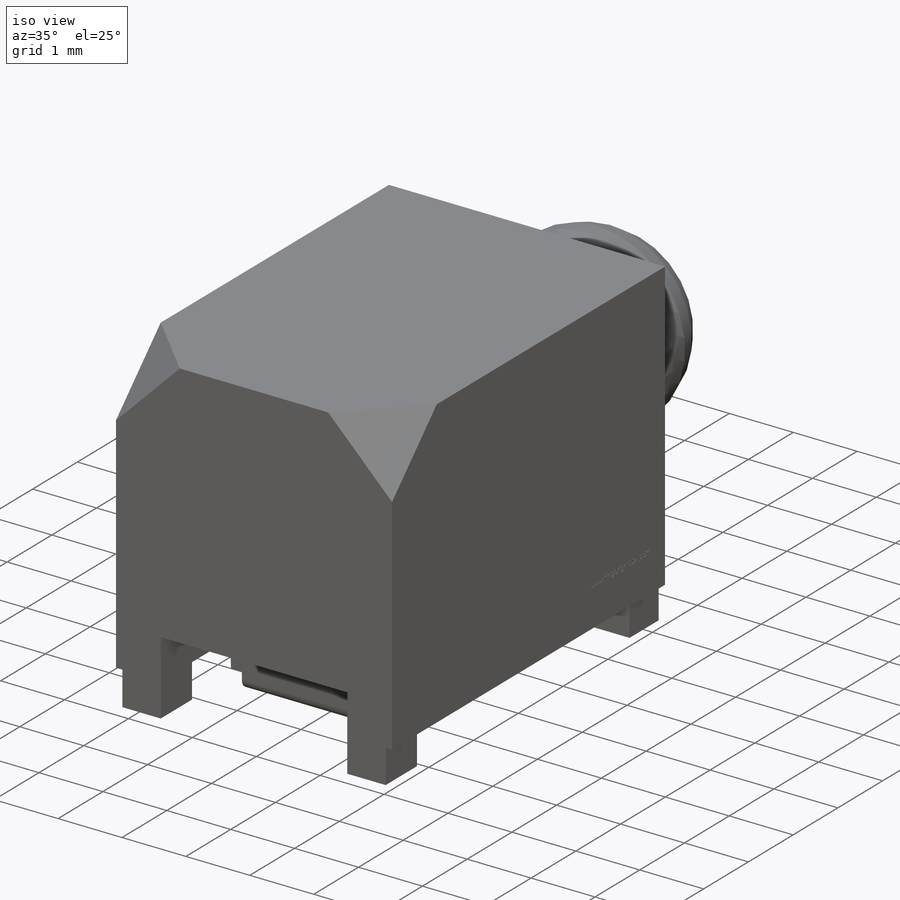
[diagram: iso view]
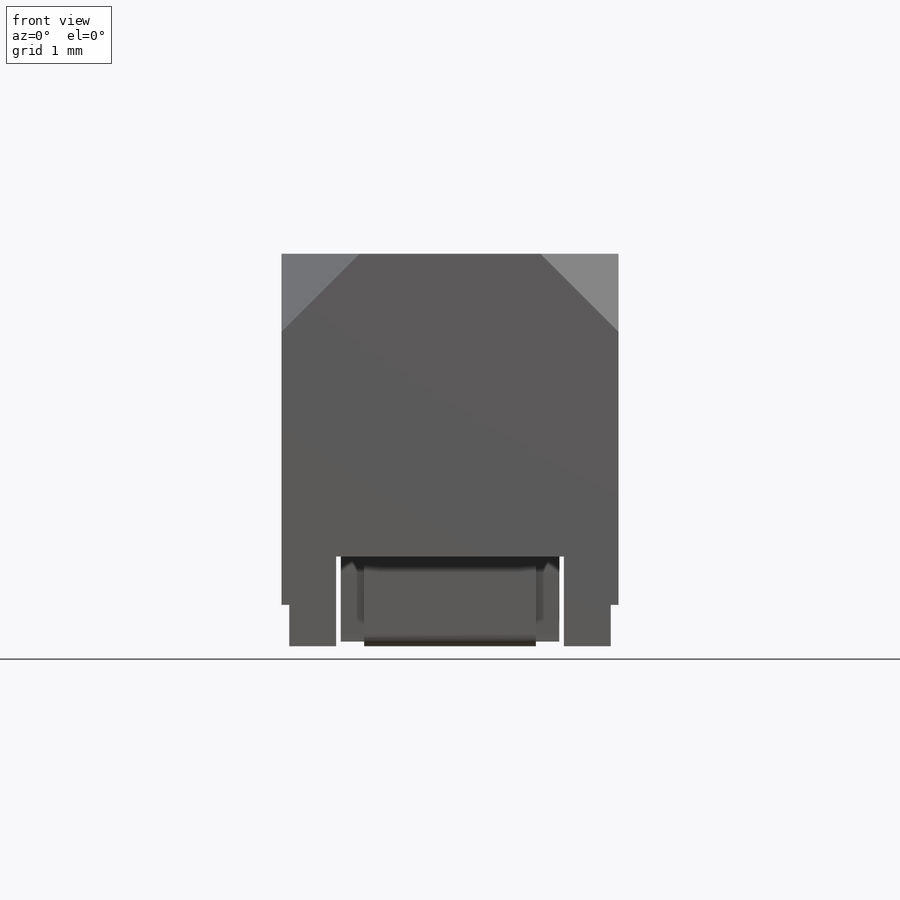
[diagram: front view]
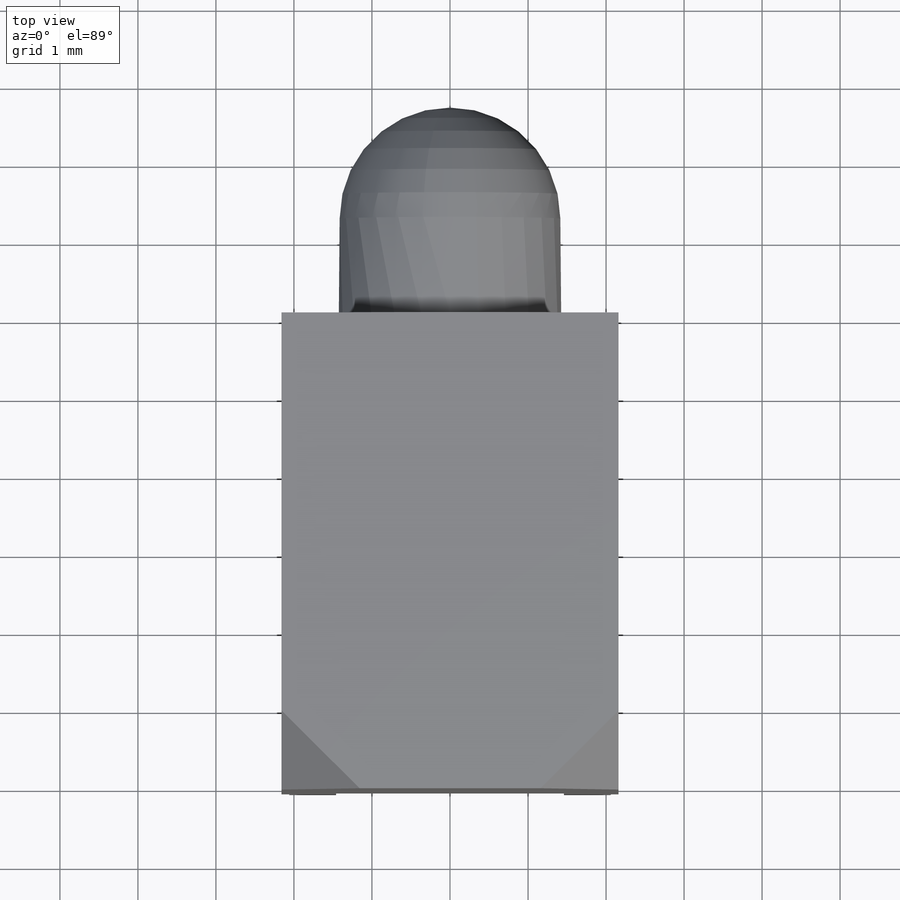
[diagram: top view]
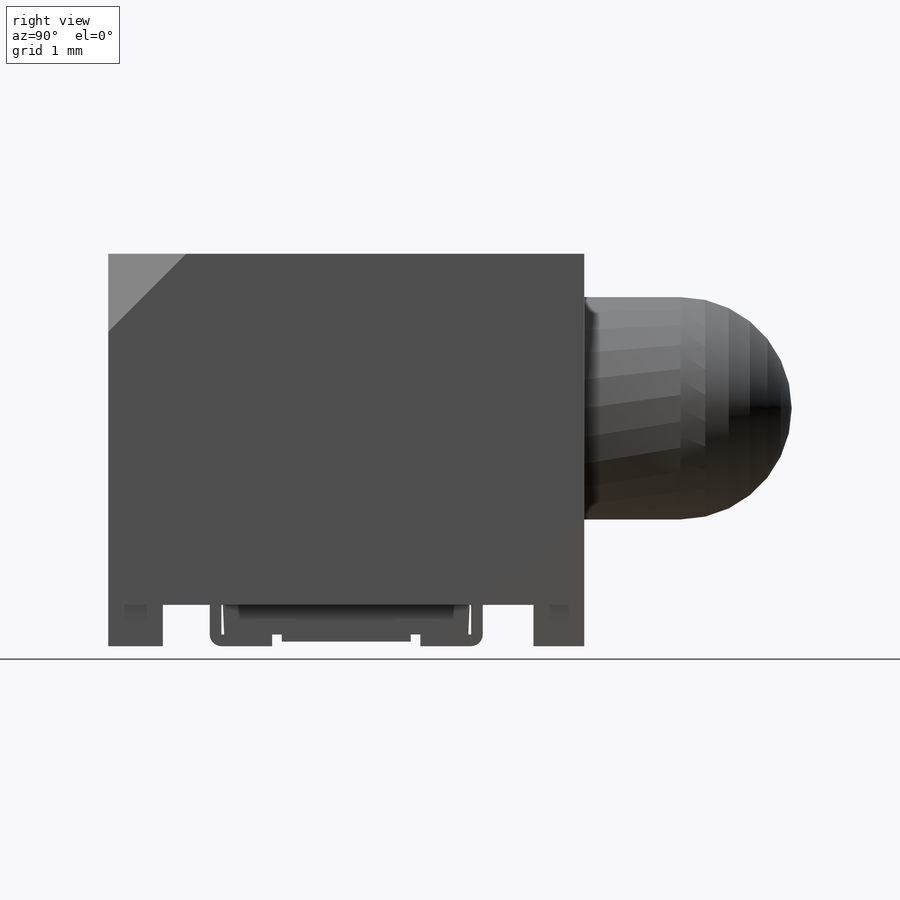
[diagram: right view]
SOLIDWORKS PART (.sldprt)
format: sldprt  version: not decoded by parser v0  size: 741,376 bytes
history: native  units: mm
features: sketch x7, extrude x4, cut_extrude x2, chamfer x2, material x1, revolve x1 (+11 scaffold rows collapsed)
feature tree (28):
  scaffold x11  (default folders/planes/origin — collapsed)
  material  "Material <not specified>"
  sketch  "Sketch7"  dims[c1.D4=2.85mm c1.D1=6.1mm c1.D2=5.03mm c1.D3=2.66mm c1.D5=2.66mm c2.D5=90.0deg c3.D5=3.05mm c3.D6=3.05mm c4.D5=3.05mm c4.D6=3.05mm c4.D7=3.05mm c4.D8=4.5mm c4.D9=3.05mm c4.D10=2.66mm c5.D5=3.05mm]
  extrude  "Extrude3"  Depth=4.32mm
  revolve  "Revolve1"  [1 undecoded]
  sketch  "Sketch7<3>"  dims[D1=360.0deg]
  sketch  "Sketch8"  dims[c1.D1=0.1mm c1.D2=0.1mm c1.D3=0.56mm c2.D1=0.6mm c2.D3=2.92mm c3.D1=0.7mm c3.D3=0.65mm c3.D4=0.7mm c4.D1=0.6mm c4.D4=0.6mm c5.D1=0.7mm c5.D4=0.6mm c5.D2=0.1mm c5.D5=0.6mm]
  extrude  "Extrude4"  [1 undecoded]
  sketch  "Sketch9"  dims[D1=1.15mm]
  cut_extrude  "Cut-Extrude4"  [1 undecoded]
  sketch  "Sketch5"  dims[D1=~2.247895mm]
  sketch  "Sketch10"  dims[c1.D4=0.15mm c1.D1=0.8mm c1.D2=1.8mm c1.D3=1.75mm c2.D4=0.05mm c2.D6=0.8mm c2.D7=3.5mm c2.D8=1.1mm c2.D1=0.8mm c2.D2=1.15mm c2.D3=1.75mm c3.D4=0.05mm c3.D6=0.8mm c3.D7=3.5mm c3.D8=1.1mm c3.D9=1.15mm c3.D10=0.8mm c3.D11=0.8mm c3.D2=1.15mm c3.D3=1.15mm c3.D1=0.8mm c4.D4=0.8mm c4.D6=1.1mm c4.D7=3.5mm c4.D5=0.15mm]
  extrude  "Extrude5"  Depth=2.8mm
  extrude  "Extrude6"  [1 undecoded]
  sketch  "Sketch10<4>"  dims[D1=2.2mm]
  cut_extrude  "Cut-Extrude5"  Depth=0.01mm
  chamfer  "Chamfer1"  Distance=1mm
  chamfer  "Chamfer2"  Distance=1mm
decode coverage: 12 of 16 modeling features carry decoded parameters
note: ~ marks probable driven/reference dimensions
note: 4 parameter values undecoded
summary: no parameter record found for 4 features
note: suppression state not decoded; provenance and decode notes live in map.json
